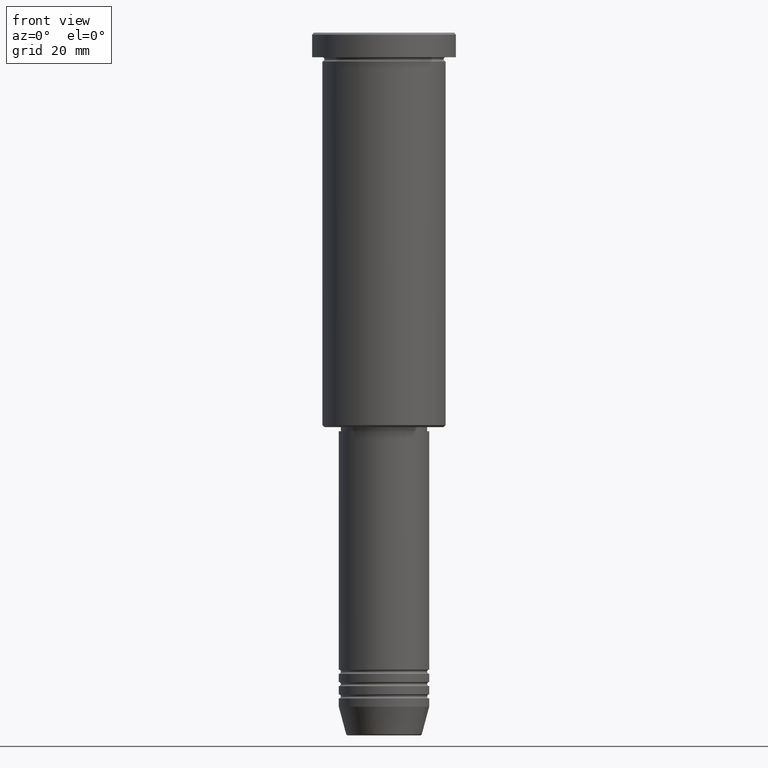
[diagram: clean part render]
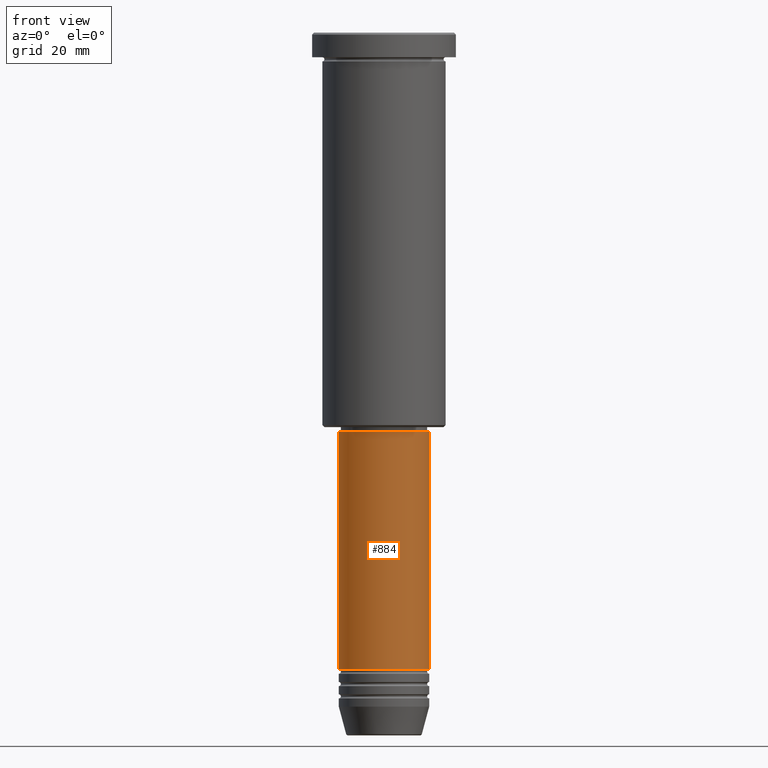
[diagram: same view with one face highlighted and labeled with its STEP entity id]
A machine part, front view. The second image highlights one B-rep face of the part: STEP entity #884.
In plain terms, the highlighted cylindrical surface (partial cylindrical patch) has radius 11 mm, axis along (-0, -0, 1).
Its self-contained STEP definition (entity closure, byte-faithful):
#47 = VECTOR ( 'NONE', #697, 1000.000000000000000 ) ;
#71 = EDGE_LOOP ( 'NONE', ( #512, #249, #155, #730 ) ) ;
#110 = DIRECTION ( 'NONE',  ( -0.000000000000000000, -0.000000000000000000, 1.000000000000000000 ) ) ;
#136 = CYLINDRICAL_SURFACE ( 'NONE', #420, 11.00000000000000000 ) ;
#155 = ORIENTED_EDGE ( 'NONE', *, *, #219, .T. ) ;
#186 = CARTESIAN_POINT ( 'NONE',  ( 0.000000000000000000, 0.000000000000000000, -97.00000000000000000 ) ) ;
#208 = AXIS2_PLACEMENT_3D ( 'NONE', #186, #642, #912 ) ;
#213 = DIRECTION ( 'NONE',  ( 1.000000000000000000, 0.000000000000000000, 0.000000000000000000 ) ) ;
#219 = EDGE_CURVE ( 'NONE', #289, #361, #565, .T. ) ;
#235 = CARTESIAN_POINT ( 'NONE',  ( -11.00000000000000000, 1.347111479062088405E-15, 0.000000000000000000 ) ) ;
#249 = ORIENTED_EDGE ( 'NONE', *, *, #1175, .T. ) ;
#263 = CARTESIAN_POINT ( 'NONE',  ( 0.000000000000000000, 0.000000000000000000, 0.000000000000000000 ) ) ;
#265 = EDGE_CURVE ( 'NONE', #496, #361, #488, .T. ) ;
#289 = VERTEX_POINT ( 'NONE', #908 ) ;
#332 = LINE ( 'NONE', #235, #47 ) ;
#361 = VERTEX_POINT ( 'NONE', #915 ) ;
#420 = AXIS2_PLACEMENT_3D ( 'NONE', #263, #1168, #1146 ) ;
#488 = CIRCLE ( 'NONE', #208, 11.00000000000000000 ) ;
#496 = VERTEX_POINT ( 'NONE', #1142 ) ;
#503 = CIRCLE ( 'NONE', #865, 11.00000000000000000 ) ;
#512 = ORIENTED_EDGE ( 'NONE', *, *, #896, .F. ) ;
#565 = LINE ( 'NONE', #764, #1140 ) ;
#642 = DIRECTION ( 'NONE',  ( -0.000000000000000000, -0.000000000000000000, 1.000000000000000000 ) ) ;
#697 = DIRECTION ( 'NONE',  ( -0.000000000000000000, -0.000000000000000000, 1.000000000000000000 ) ) ;
#730 = ORIENTED_EDGE ( 'NONE', *, *, #265, .F. ) ;
#764 = CARTESIAN_POINT ( 'NONE',  ( 11.00000000000000000, 0.000000000000000000, 0.000000000000000000 ) ) ;
#852 = CARTESIAN_POINT ( 'NONE',  ( 0.000000000000000000, 0.000000000000000000, -154.9999999999999716 ) ) ;
#865 = AXIS2_PLACEMENT_3D ( 'NONE', #852, #1144, #213 ) ;
#868 = VERTEX_POINT ( 'NONE', #1134 ) ;
#884 = ADVANCED_FACE ( 'NONE', ( #972 ), #136, .T. ) ;
#896 = EDGE_CURVE ( 'NONE', #868, #496, #332, .T. ) ;
#908 = CARTESIAN_POINT ( 'NONE',  ( 11.00000000000000000, 0.000000000000000000, -154.9999999999999716 ) ) ;
#912 = DIRECTION ( 'NONE',  ( 1.000000000000000000, 0.000000000000000000, 0.000000000000000000 ) ) ;
#915 = CARTESIAN_POINT ( 'NONE',  ( 11.00000000000000000, 0.000000000000000000, -97.00000000000000000 ) ) ;
#972 = FACE_OUTER_BOUND ( 'NONE', #71, .T. ) ;
#1134 = CARTESIAN_POINT ( 'NONE',  ( -11.00000000000000000, 1.347111479062088405E-15, -154.9999999999999716 ) ) ;
#1140 = VECTOR ( 'NONE', #110, 1000.000000000000000 ) ;
#1142 = CARTESIAN_POINT ( 'NONE',  ( -11.00000000000000000, 1.347111479062088405E-15, -97.00000000000000000 ) ) ;
#1144 = DIRECTION ( 'NONE',  ( -0.000000000000000000, -0.000000000000000000, 1.000000000000000000 ) ) ;
#1146 = DIRECTION ( 'NONE',  ( 1.000000000000000000, 0.000000000000000000, 0.000000000000000000 ) ) ;
#1168 = DIRECTION ( 'NONE',  ( -0.000000000000000000, -0.000000000000000000, 1.000000000000000000 ) ) ;
#1175 = EDGE_CURVE ( 'NONE', #868, #289, #503, .T. ) ;